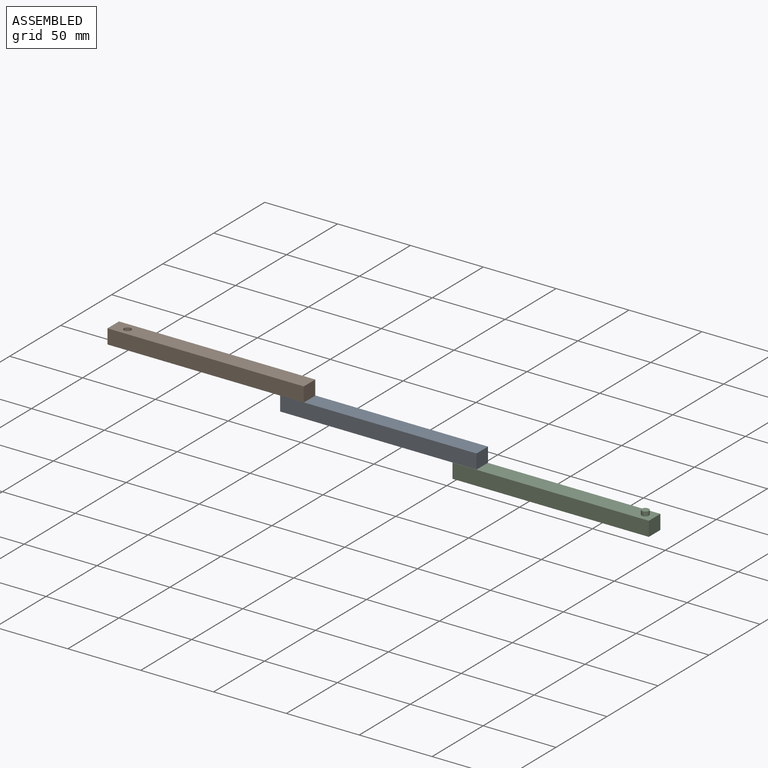
[diagram: assembled view]
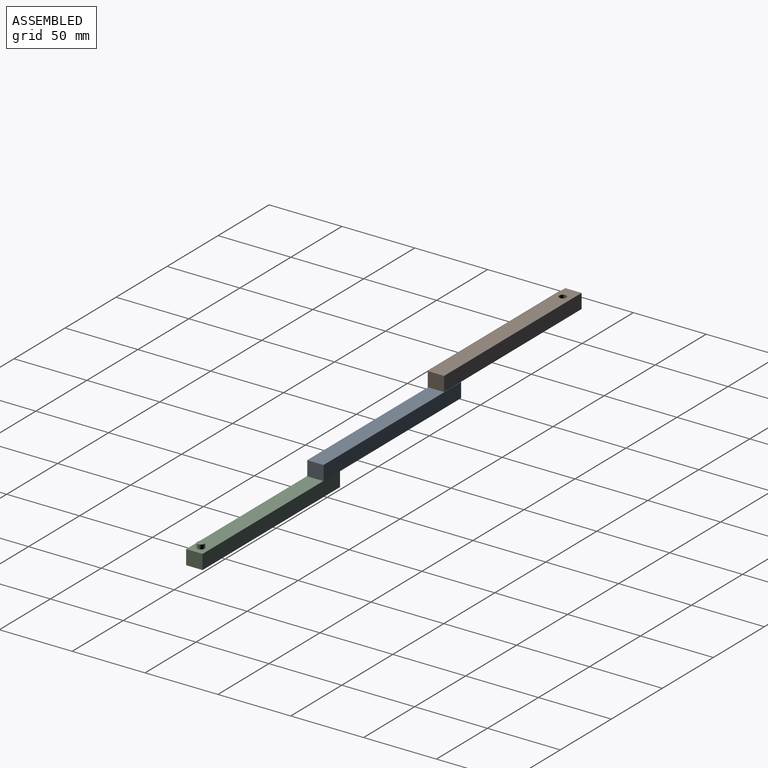
[diagram: assembled view, second angle]
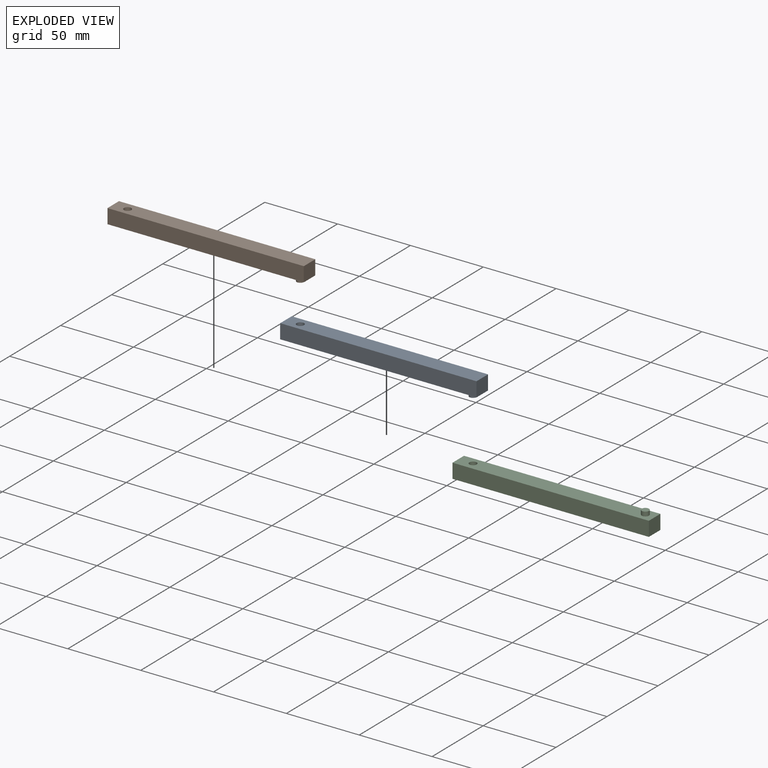
[diagram: exploded view]
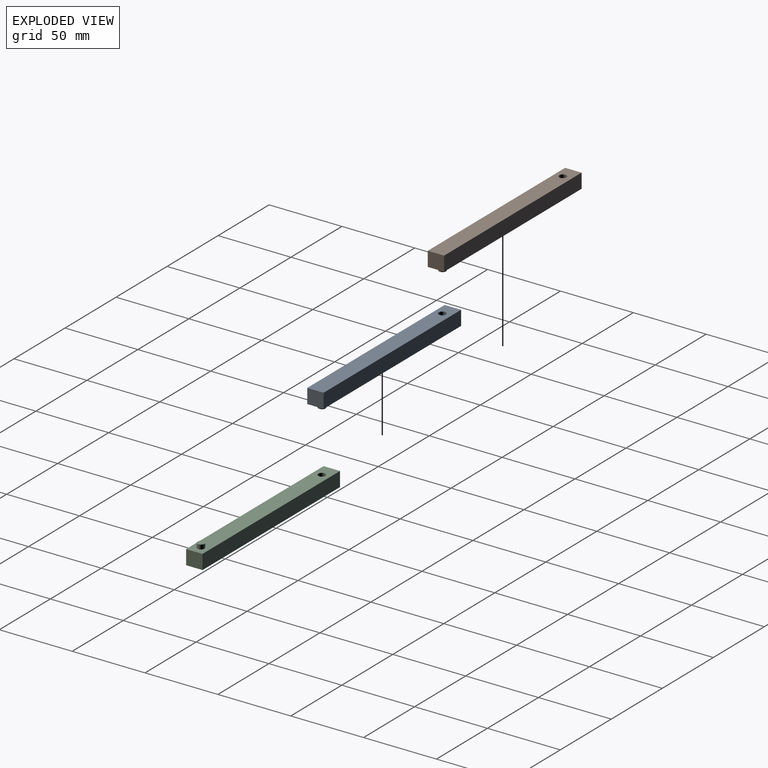
[diagram: exploded view, second angle]
ASSEMBLY  parts=3 mates=2
PART A: 9 faces, bbox 134.8x11.3x13 mm
  f0: plane 134.75x10mm, normal (0,1,0), area 1347.5mm2, adj f1,f4,f5,f6
  f1: plane 11.26x10mm, normal (-1,0,0), area 112.6mm2, adj f0,f2,f5,f6
  f2: plane 134.75x10mm, normal (0,-1,0), area 1347.5mm2, adj f1,f4,f5,f6
  f3: cylinder r=2.5mm len=10mm, axis (0,0,-1), area 157.1mm2, adj f5,f6
  f4: plane 11.26x10mm, normal (1,0,0), area 112.6mm2, adj f0,f2,f5,f6
  f5: plane 134.75x11.26mm, normal (0,0,1), area 1497.3mm2, adj f0,f1,f2,f3,f4
  f6: plane 134.75x11.26mm, normal (0,0,-1), area 1477.7mm2, adj f0,f1,f2,f3,f4,f7
  f7: cylinder r=2.5mm len=5mm, axis (0,0,1), area 47.1mm2, adj f6,f8
  f8: plane 5x5mm, normal (0,0,-1), area 19.6mm2, adj f7
PART B: same geometry as A
PART C: same geometry as A
PLACE A t=(123.59,19.31,13.1)mm
PLACE B t=(5.18,19.12,23.1)mm
PLACE C rot(axis=(1,0,0),180deg) t=(242,25.44,13.1)mm
MATE revolute C.f3 <-> A.f7  axis (0,0,-1) through (187.31,22.46,13.1)mm
MATE revolute A.f3 <-> B.f7  axis (0,0,1) through (68.91,22.28,23.1)mm
